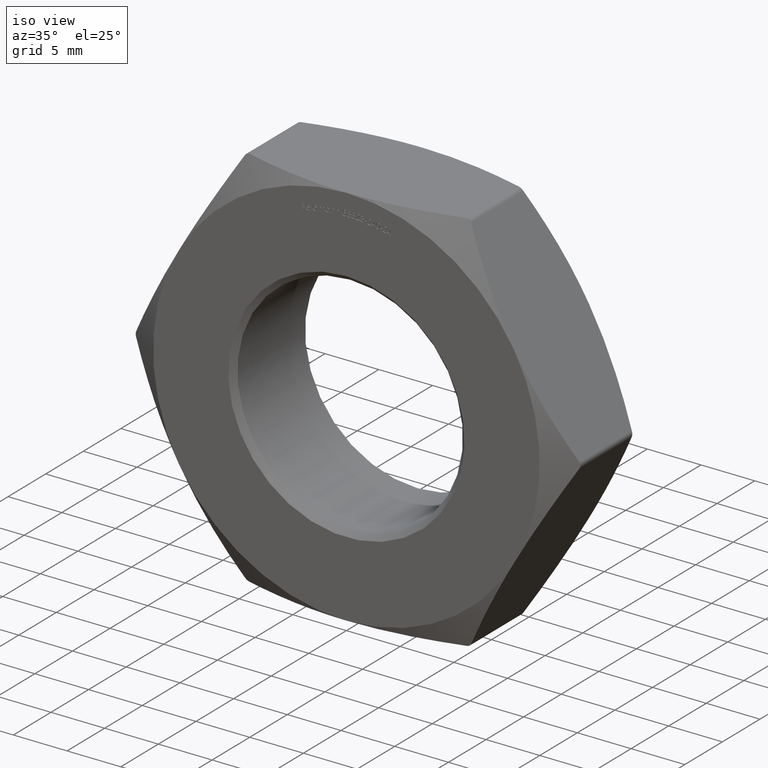
[diagram: clean part render]
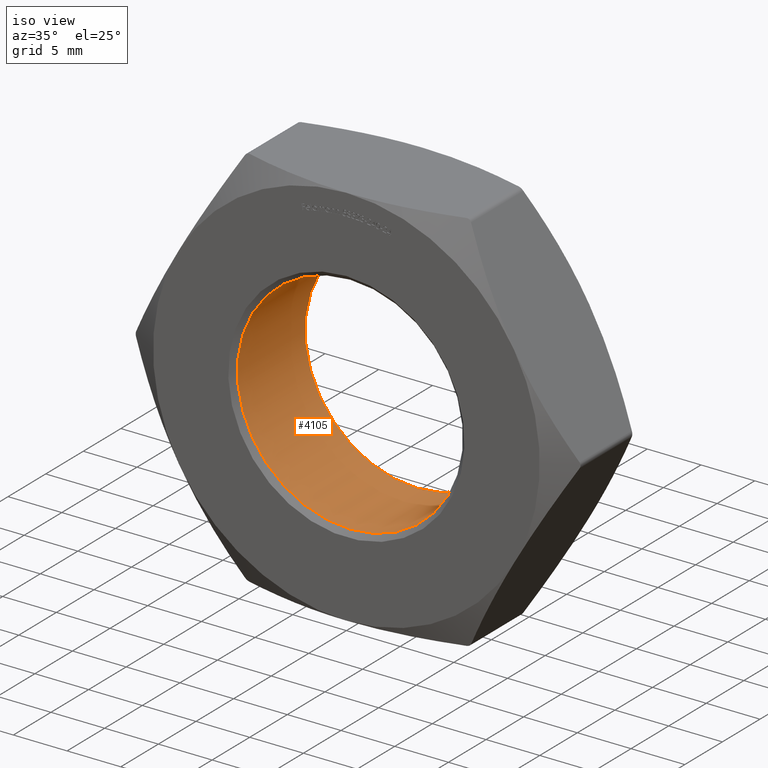
[diagram: same view with one face highlighted and labeled with its STEP entity id]
A machine part, iso view. The second image highlights one B-rep face of the part: STEP entity #4105.
In plain terms, the highlighted cylindrical surface (bore or boss wall) has radius 10.5 mm, axis along (-0, 1, -0).
Its self-contained STEP definition (entity closure, byte-faithful):
#652 = CARTESIAN_POINT ( 'NONE',  ( 0.000000000000000000, 4.499999999999994671, 10.49999999999999822 ) ) ;
#738 = DIRECTION ( 'NONE',  ( -0.000000000000000000, 1.000000000000000000, -0.000000000000000000 ) ) ;
#757 = DIRECTION ( 'NONE',  ( 0.000000000000000000, 0.000000000000000000, 1.000000000000000000 ) ) ;
#1625 = VERTEX_POINT ( 'NONE', #652 ) ;
#1930 = CARTESIAN_POINT ( 'NONE',  ( 0.000000000000000000, -4.500000000000007994, 0.000000000000000000 ) ) ;
#3706 = EDGE_CURVE ( 'NONE', #7348, #7348, #14317, .T. ) ;
#4105 = ADVANCED_FACE ( 'NONE', ( #11529, #13123 ), #8223, .F. ) ;
#4393 = CARTESIAN_POINT ( 'NONE',  ( 0.000000000000000000, -4.500000000000007994, 10.49999999999999822 ) ) ;
#4679 = CIRCLE ( 'NONE', #8354, 10.49999999999999822 ) ;
#4891 = ORIENTED_EDGE ( 'NONE', *, *, #10336, .T. ) ;
#4961 = AXIS2_PLACEMENT_3D ( 'NONE', #7043, #738, #9581 ) ;
#7043 = CARTESIAN_POINT ( 'NONE',  ( 0.000000000000000000, 5.000000000000000000, 0.000000000000000000 ) ) ;
#7348 = VERTEX_POINT ( 'NONE', #4393 ) ;
#7674 = DIRECTION ( 'NONE',  ( 0.000000000000000000, 1.000000000000000000, 0.000000000000000000 ) ) ;
#8223 = CYLINDRICAL_SURFACE ( 'NONE', #4961, 10.49999999999999822 ) ;
#8329 = DIRECTION ( 'NONE',  ( -0.000000000000000000, -1.000000000000000000, -0.000000000000000000 ) ) ;
#8354 = AXIS2_PLACEMENT_3D ( 'NONE', #13908, #7674, #11357 ) ;
#9581 = DIRECTION ( 'NONE',  ( 0.000000000000000000, 0.000000000000000000, 1.000000000000000000 ) ) ;
#10302 = ORIENTED_EDGE ( 'NONE', *, *, #3706, .T. ) ;
#10336 = EDGE_CURVE ( 'NONE', #1625, #1625, #4679, .T. ) ;
#11357 = DIRECTION ( 'NONE',  ( 0.000000000000000000, 0.000000000000000000, 1.000000000000000000 ) ) ;
#11436 = EDGE_LOOP ( 'NONE', ( #10302 ) ) ;
#11529 = FACE_OUTER_BOUND ( 'NONE', #12308, .T. ) ;
#12102 = AXIS2_PLACEMENT_3D ( 'NONE', #1930, #8329, #757 ) ;
#12308 = EDGE_LOOP ( 'NONE', ( #4891 ) ) ;
#13123 = FACE_OUTER_BOUND ( 'NONE', #11436, .T. ) ;
#13908 = CARTESIAN_POINT ( 'NONE',  ( 0.000000000000000000, 4.499999999999994671, 0.000000000000000000 ) ) ;
#14317 = CIRCLE ( 'NONE', #12102, 10.49999999999999822 ) ;